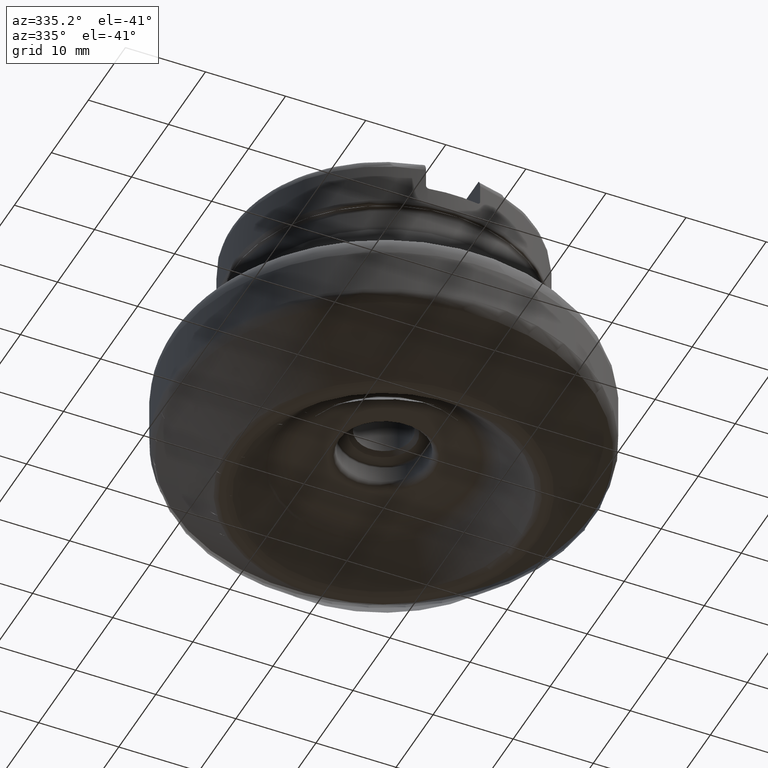
[diagram: clean part render]
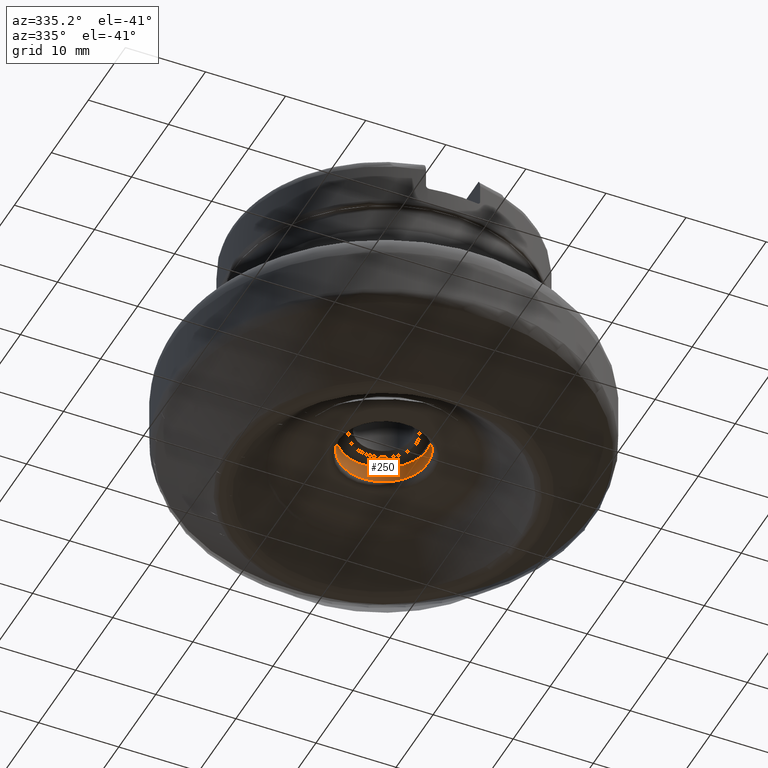
[diagram: same view with one face highlighted and labeled with its STEP entity id]
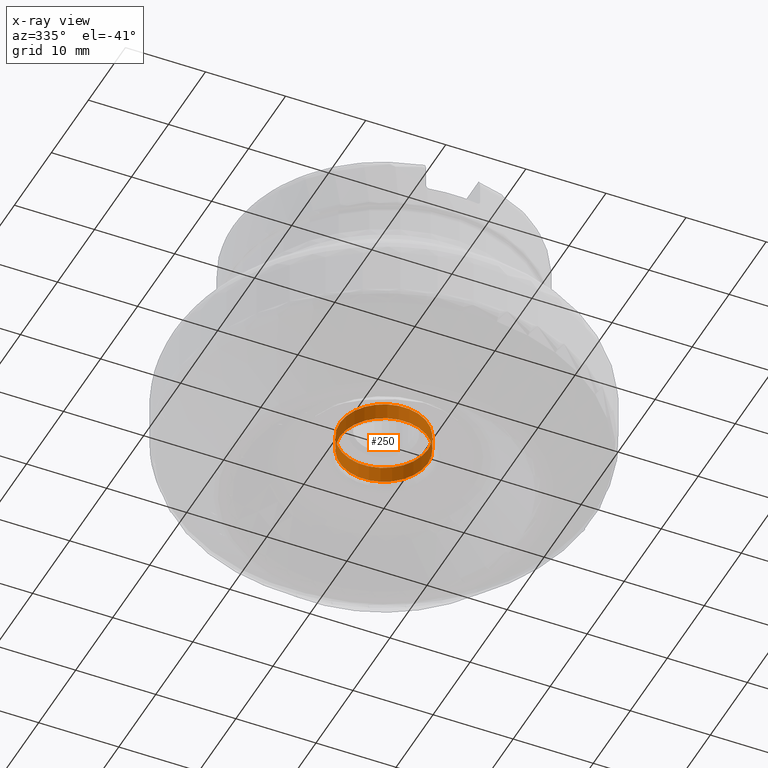
[diagram: x-ray of the same camera — body ghosted, the highlighted face saturated]
A machine part, auxiliary view. The second image highlights one B-rep face of the part: STEP entity #250.
The next image is the same camera in x-ray: the body ghosted, the highlighted face saturated — about 0% of this face is hidden behind the body in this view.
In plain terms, the highlighted cylindrical surface (bore or boss wall) has radius 5.4991 mm, axis along (0, -0, 1).
Its self-contained STEP definition (entity closure, byte-faithful):
#250=ADVANCED_FACE('',(#410,#411),#303,.F.);
#303=CYLINDRICAL_SURFACE('',#1246,5.4991);
#410=FACE_BOUND('',#522,.T.);
#411=FACE_BOUND('',#523,.T.);
#522=EDGE_LOOP('',(#704));
#523=EDGE_LOOP('',(#705));
#704=ORIENTED_EDGE('',*,*,#1014,.T.);
#705=ORIENTED_EDGE('',*,*,#1015,.T.);
#909=VERTEX_POINT('',#2201);
#910=VERTEX_POINT('',#2203);
#1014=EDGE_CURVE('',#909,#909,#1091,.T.);
#1015=EDGE_CURVE('',#910,#910,#1092,.T.);
#1091=CIRCLE('',#1244,5.4991);
#1092=CIRCLE('',#1245,5.4991);
#1244=AXIS2_PLACEMENT_3D('',#2200,#1451,#1452);
#1245=AXIS2_PLACEMENT_3D('',#2202,#1453,#1454);
#1246=AXIS2_PLACEMENT_3D('',#2204,#1455,#1456);
#1451=DIRECTION('',(-1.17145536458252E-15,0.,-1.));
#1452=DIRECTION('',(-1.,0.,1.10409560944861E-15));
#1453=DIRECTION('',(1.17145536458252E-15,-3.51436609374757E-15,1.));
#1454=DIRECTION('',(-1.,0.,1.26182355365555E-15));
#1455=DIRECTION('',(1.17145536458252E-15,-3.51436609374757E-15,1.));
#1456=DIRECTION('',(-1.,0.,1.26182355365555E-15));
#2200=CARTESIAN_POINT('',(8.83276494093143E-15,-2.64982948227943E-14,7.53999273722153));
#2201=CARTESIAN_POINT('',(-5.49909999999999,-2.64982948227943E-14,7.53999273722154));
#2202=CARTESIAN_POINT('',(1.12752578841068E-14,-3.38257736523204E-14,9.625));
#2203=CARTESIAN_POINT('',(-5.49909999999999,-3.38257736523204E-14,9.62500000000001));
#2204=CARTESIAN_POINT('',(4.11473696809612E-14,-1.23442109042884E-13,35.125));